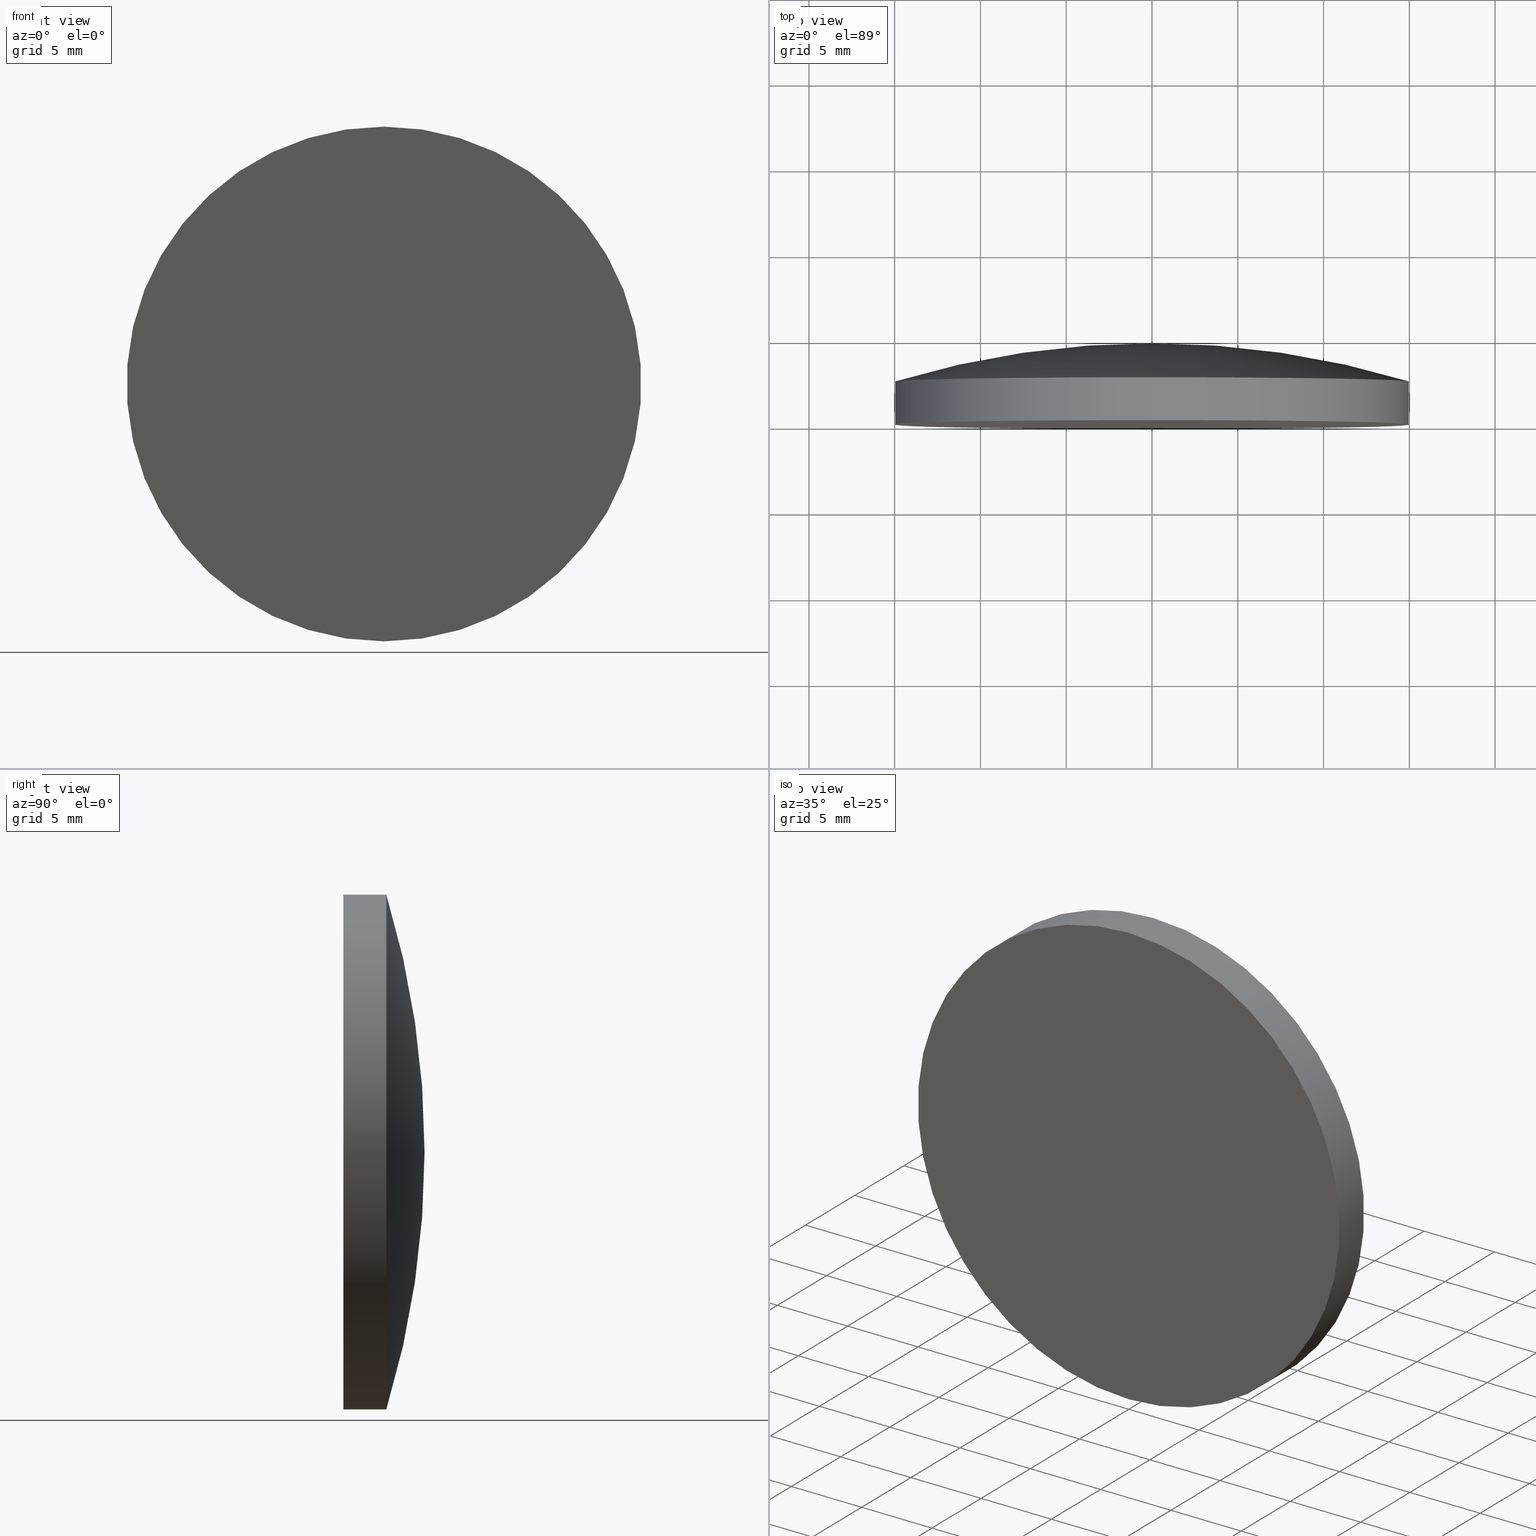
[diagram: canonical four-view strip — front | top / right | iso, engineering-drawing reading convention]
A machine part, canonical four-view strip (front | top / right | iso — engineering-drawing reading convention). The complete STEP part file that produces these views, byte-faithful:
ISO-10303-21;
HEADER;
FILE_DESCRIPTION (( 'STEP AP203' ),
    '1' );
FILE_NAME ('100552.STEP',
    '2024-05-09T01:18:10',
    ( '' ),
    ( '' ),
    'SwSTEP 2.0',
    'SolidWorks 2020',
    '' );
FILE_SCHEMA (( 'CONFIG_CONTROL_DESIGN' ));
ENDSEC;

DATA;
#1 = COORDINATED_UNIVERSAL_TIME_OFFSET ( 8, 0, .AHEAD. ) ;
#2 = DATE_AND_TIME ( #144, #142 ) ;
#3 = AXIS2_PLACEMENT_3D ( 'NONE', #179, #162, #22 ) ;
#4 = APPLICATION_CONTEXT ( 'configuration controlled 3d designs of mechanical parts and assemblies' ) ;
#5 = PRODUCT_DEFINITION ( 'δ֪', '', #41, #196 ) ;
#6 = ADVANCED_FACE ( 'NONE', ( #199 ), #66, .T. ) ;
#7 = APPROVAL_DATE_TIME ( #117, #24 ) ;
#8 = DIRECTION ( 'NONE',  ( -0.000000000000000000, 1.000000000000000000, -0.000000000000000000 ) ) ;
#9 = TOROIDAL_SURFACE ( 'NONE', #99, -0.01138314681478104495, 51.64000000000000057 ) ;
#10 = DIRECTION ( 'NONE',  ( 0.000000000000000000, 0.000000000000000000, 1.000000000000000000 ) ) ;
#11 = CC_DESIGN_PERSON_AND_ORGANIZATION_ASSIGNMENT ( #197, #57, ( #84 ) ) ;
#12 = DIRECTION ( 'NONE',  ( 0.000000000000000000, 0.000000000000000000, 1.000000000000000000 ) ) ;
#13 = APPROVAL_ROLE ( '' ) ;
#14 = CYLINDRICAL_SURFACE ( 'NONE', #174, 15.00000000000000000 ) ;
#15 = EDGE_LOOP ( 'NONE', ( #90, #125, #16, #200 ) ) ;
#16 = ORIENTED_EDGE ( 'NONE', *, *, #26, .F. ) ;
#17 = PERSON_AND_ORGANIZATION_ROLE ( 'creator' ) ;
#18 = AXIS2_PLACEMENT_3D ( 'NONE', #25, #87, #12 ) ;
#19 = PERSON_AND_ORGANIZATION ( #183, #61 ) ;
#20 =( GEOMETRIC_REPRESENTATION_CONTEXT ( 3 ) GLOBAL_UNCERTAINTY_ASSIGNED_CONTEXT ( ( #96 ) ) GLOBAL_UNIT_ASSIGNED_CONTEXT ( ( #169, #44, #138 ) ) REPRESENTATION_CONTEXT ( 'NONE', 'WORKASPACE' ) );
#21 = CYLINDRICAL_SURFACE ( 'NONE', #48, 15.00000000000000000 ) ;
#22 = DIRECTION ( 'NONE',  ( 0.000000000000000000, -0.000000000000000000, -1.000000000000000000 ) ) ;
#23 = AXIS2_PLACEMENT_3D ( 'NONE', #58, #122, #109 ) ;
#24 = APPROVAL ( #83, 'δָ��' ) ;
#25 = CARTESIAN_POINT ( 'NONE',  ( 0.000000000000000000, -1.734723475976807094E-15, 0.000000000000000000 ) ) ;
#26 = EDGE_CURVE ( 'NONE', #47, #112, #151, .T. ) ;
#27 = DIRECTION ( 'NONE',  ( -0.000000000000000000, 1.000000000000000000, -0.000000000000000000 ) ) ;
#28 = AXIS2_PLACEMENT_3D ( 'NONE', #193, #54, #10 ) ;
#29 = ORIENTED_EDGE ( 'NONE', *, *, #171, .T. ) ;
#30 = MECHANICAL_CONTEXT ( 'NONE', #4, 'mechanical' ) ;
#31 = DIRECTION ( 'NONE',  ( 1.224646799147353207E-16, 0.000000000000000000, -1.000000000000000000 ) ) ;
#32 = ORIENTED_EDGE ( 'NONE', *, *, #191, .T. ) ;
#33 = CARTESIAN_POINT ( 'NONE',  ( 0.000000000000000000, -46.90999874539085113, 0.000000000000000000 ) ) ;
#34 = DATE_TIME_ROLE ( 'creation_date' ) ;
#35 = COORDINATED_UNIVERSAL_TIME_OFFSET ( 8, 0, .AHEAD. ) ;
#36 = AXIS2_PLACEMENT_3D ( 'NONE', #45, #89, #43 ) ;
#37 = CLOSED_SHELL ( 'NONE', ( #116, #102, #6, #65, #78 ) ) ;
#38 = FACE_OUTER_BOUND ( 'NONE', #182, .T. ) ;
#39 = CARTESIAN_POINT ( 'NONE',  ( 1.836970198721029589E-15, -1.734723475976807094E-15, -15.00000000000000000 ) ) ;
#40 = CC_DESIGN_PERSON_AND_ORGANIZATION_ASSIGNMENT ( #67, #50, ( #41 ) ) ;
#41 = PRODUCT_DEFINITION_FORMATION_WITH_SPECIFIED_SOURCE ( '�κ�', '', #84, .NOT_KNOWN. ) ;
#42 = EDGE_CURVE ( 'NONE', #60, #74, #147, .T. ) ;
#43 = DIRECTION ( 'NONE',  ( 0.000000000000000000, 0.000000000000000000, 1.000000000000000000 ) ) ;
#44 =( NAMED_UNIT ( * ) PLANE_ANGLE_UNIT ( ) SI_UNIT ( $, .RADIAN. ) );
#45 = CARTESIAN_POINT ( 'NONE',  ( 0.000000000000000000, 2.499999999999998224, 0.000000000000000000 ) ) ;
#46 = ORIENTED_EDGE ( 'NONE', *, *, #171, .F. ) ;
#47 = VERTEX_POINT ( 'NONE', #135 ) ;
#48 = AXIS2_PLACEMENT_3D ( 'NONE', #56, #106, #85 ) ;
#49 = DATE_AND_TIME ( #157, #126 ) ;
#50 = PERSON_AND_ORGANIZATION_ROLE ( 'design_supplier' ) ;
#51 = APPROVAL_PERSON_ORGANIZATION ( #80, #190, #128 ) ;
#52 = AXIS2_PLACEMENT_3D ( 'NONE', #111, #167, #31 ) ;
#53 = FACE_OUTER_BOUND ( 'NONE', #154, .T. ) ;
#54 = DIRECTION ( 'NONE',  ( -0.000000000000000000, 1.000000000000000000, -0.000000000000000000 ) ) ;
#55 = CC_DESIGN_PERSON_AND_ORGANIZATION_ASSIGNMENT ( #172, #114, ( #5 ) ) ;
#56 = CARTESIAN_POINT ( 'NONE',  ( 0.000000000000000000, 4.730000000000000426, 0.000000000000000000 ) ) ;
#57 = PERSON_AND_ORGANIZATION_ROLE ( 'design_owner' ) ;
#58 = CARTESIAN_POINT ( 'NONE',  ( 0.000000000000000000, -46.90999874539085113, -0.01138314681478104495 ) ) ;
#59 = ORIENTED_EDGE ( 'NONE', *, *, #159, .F. ) ;
#60 = VERTEX_POINT ( 'NONE', #105 ) ;
#61 = ORGANIZATION ( 'δָ��', 'δָ��', '' ) ;
#62 = ORIENTED_EDGE ( 'NONE', *, *, #136, .T. ) ;
#63 = CC_DESIGN_DATE_AND_TIME_ASSIGNMENT ( #49, #34, ( #5 ) ) ;
#64 = COORDINATED_UNIVERSAL_TIME_OFFSET ( 8, 0, .AHEAD. ) ;
#65 = ADVANCED_FACE ( 'NONE', ( #134 ), #194, .T. ) ;
#66 = TOROIDAL_SURFACE ( 'NONE', #129, -0.01138314681478104495, 51.64000000000000057 ) ;
#67 = PERSON_AND_ORGANIZATION ( #183, #61 ) ;
#68 = ADVANCED_BREP_SHAPE_REPRESENTATION ( '100552', ( #161, #133 ), #20 ) ;
#69 = SECURITY_CLASSIFICATION ( '', '', #187 ) ;
#70 = DIRECTION ( 'NONE',  ( -0.000000000000000000, 1.000000000000000000, -0.000000000000000000 ) ) ;
#71 = DIRECTION ( 'NONE',  ( 0.000000000000000000, 0.000000000000000000, 1.000000000000000000 ) ) ;
#72 = CARTESIAN_POINT ( 'NONE',  ( 0.000000000000000000, 4.730000000000000426, 0.000000000000000000 ) ) ;
#73 = CARTESIAN_POINT ( 'NONE',  ( 0.000000000000000000, 4.730000000000000426, 15.00000000000000000 ) ) ;
#74 = VERTEX_POINT ( 'NONE', #39 ) ;
#75 = ORIENTED_EDGE ( 'NONE', *, *, #136, .F. ) ;
#76 = ORIENTED_EDGE ( 'NONE', *, *, #26, .T. ) ;
#77 = CC_DESIGN_PERSON_AND_ORGANIZATION_ASSIGNMENT ( #19, #115, ( #69 ) ) ;
#78 = ADVANCED_FACE ( 'NONE', ( #53 ), #21, .T. ) ;
#79 = VECTOR ( 'NONE', #139, 1000.000000000000000 ) ;
#80 = PERSON_AND_ORGANIZATION ( #183, #61 ) ;
#81 = DATE_AND_TIME ( #188, #201 ) ;
#82 = PRODUCT_DEFINITION_SHAPE ( 'NONE', 'NONE',  #5 ) ;
#83 = APPROVAL_STATUS ( 'not_yet_approved' ) ;
#84 = PRODUCT ( '100552', '100552', '', ( #30 ) ) ;
#85 = DIRECTION ( 'NONE',  ( 0.000000000000000000, 0.000000000000000000, 1.000000000000000000 ) ) ;
#86 = APPROVAL_PERSON_ORGANIZATION ( #165, #145, #13 ) ;
#87 = DIRECTION ( 'NONE',  ( -0.000000000000000000, 1.000000000000000000, -0.000000000000000000 ) ) ;
#88 = DIRECTION ( 'NONE',  ( 0.000000000000000000, 0.000000000000000000, 1.000000000000000000 ) ) ;
#89 = DIRECTION ( 'NONE',  ( -0.000000000000000000, 1.000000000000000000, -0.000000000000000000 ) ) ;
#90 = ORIENTED_EDGE ( 'NONE', *, *, #42, .T. ) ;
#91 = DIRECTION ( 'NONE',  ( 1.000000000000000000, 0.000000000000000000, 0.000000000000000000 ) ) ;
#92 = ORIENTED_EDGE ( 'NONE', *, *, #191, .F. ) ;
#93 = DATE_AND_TIME ( #97, #131 ) ;
#94 = CC_DESIGN_APPROVAL ( #190, ( #41 ) ) ;
#95 = APPROVAL_DATE_TIME ( #81, #145 ) ;
#96 = UNCERTAINTY_MEASURE_WITH_UNIT (LENGTH_MEASURE( 1.000000000000000082E-05 ), #169, 'distance_accuracy_value', 'NONE');
#97 = CALENDAR_DATE ( 2024, 9, 5 ) ;
#98 = APPLICATION_CONTEXT ( 'configuration controlled 3d designs of mechanical parts and assemblies' ) ;
#99 = AXIS2_PLACEMENT_3D ( 'NONE', #153, #150, #166 ) ;
#100 = EDGE_CURVE ( 'NONE', #74, #112, #119, .T. ) ;
#101 = APPROVAL_ROLE ( '' ) ;
#102 = ADVANCED_FACE ( 'NONE', ( #38 ), #9, .T. ) ;
#103 = COORDINATED_UNIVERSAL_TIME_OFFSET ( 8, 0, .AHEAD. ) ;
#104 = DATE_TIME_ROLE ( 'classification_date' ) ;
#105 = CARTESIAN_POINT ( 'NONE',  ( 0.000000000000000000, -1.734723475976807094E-15, 15.00000000000000000 ) ) ;
#106 = DIRECTION ( 'NONE',  ( -0.000000000000000000, 1.000000000000000000, -0.000000000000000000 ) ) ;
#107 = CIRCLE ( 'NONE', #18, 15.00000000000000000 ) ;
#108 = APPLICATION_PROTOCOL_DEFINITION ( 'international standard', 'config_control_design', 1994, #4 ) ;
#109 = DIRECTION ( 'NONE',  ( 0.000000000000000000, 0.000000000000000000, 1.000000000000000000 ) ) ;
#110 = CARTESIAN_POINT ( 'NONE',  ( 0.000000000000000000, 0.000000000000000000, 0.000000000000000000 ) ) ;
#111 = CARTESIAN_POINT ( 'NONE',  ( -1.394033431094599677E-18, -46.90999874539085113, 0.01138314681478104495 ) ) ;
#112 = VERTEX_POINT ( 'NONE', #123 ) ;
#113 = EDGE_LOOP ( 'NONE', ( #155, #92 ) ) ;
#114 = PERSON_AND_ORGANIZATION_ROLE ( 'creator' ) ;
#115 = PERSON_AND_ORGANIZATION_ROLE ( 'classification_officer' ) ;
#116 = ADVANCED_FACE ( 'NONE', ( #195 ), #14, .T. ) ;
#117 = DATE_AND_TIME ( #192, #180 ) ;
#118 = DIRECTION ( 'NONE',  ( 0.000000000000000000, 0.000000000000000000, 1.000000000000000000 ) ) ;
#119 = LINE ( 'NONE', #178, #186 ) ;
#120 = EDGE_CURVE ( 'NONE', #60, #47, #137, .T. ) ;
#121 = APPLICATION_PROTOCOL_DEFINITION ( 'international standard', 'config_control_design', 1994, #98 ) ;
#122 = DIRECTION ( 'NONE',  ( -1.000000000000000000, 0.000000000000000000, 0.000000000000000000 ) ) ;
#123 = CARTESIAN_POINT ( 'NONE',  ( 1.836970198721029589E-15, 2.500000000000000444, -15.00000000000000178 ) ) ;
#124 = ORIENTED_EDGE ( 'NONE', *, *, #100, .F. ) ;
#125 = ORIENTED_EDGE ( 'NONE', *, *, #100, .T. ) ;
#126 = LOCAL_TIME ( 9, 18, 10.00000000000000000, #1 ) ;
#127 = CIRCLE ( 'NONE', #36, 15.00000000000000000 ) ;
#128 = APPROVAL_ROLE ( '' ) ;
#129 = AXIS2_PLACEMENT_3D ( 'NONE', #33, #70, #118 ) ;
#130 = APPROVAL_STATUS ( 'not_yet_approved' ) ;
#131 = LOCAL_TIME ( 9, 18, 10.00000000000000000, #35 ) ;
#132 = CIRCLE ( 'NONE', #52, 51.64000000000000057 ) ;
#133 = AXIS2_PLACEMENT_3D ( 'NONE', #110, #88, #91 ) ;
#134 = FACE_OUTER_BOUND ( 'NONE', #113, .T. ) ;
#135 = CARTESIAN_POINT ( 'NONE',  ( 0.000000000000000000, 2.500000000000000444, 15.00000000000000178 ) ) ;
#136 = EDGE_CURVE ( 'NONE', #47, #140, #189, .T. ) ;
#137 = LINE ( 'NONE', #73, #79 ) ;
#138 =( NAMED_UNIT ( * ) SI_UNIT ( $, .STERADIAN. ) SOLID_ANGLE_UNIT ( ) );
#139 = DIRECTION ( 'NONE',  ( -0.000000000000000000, 1.000000000000000000, -0.000000000000000000 ) ) ;
#140 = VERTEX_POINT ( 'NONE', #181 ) ;
#141 = EDGE_LOOP ( 'NONE', ( #46, #185, #62 ) ) ;
#142 = LOCAL_TIME ( 9, 18, 10.00000000000000000, #146 ) ;
#143 = CC_DESIGN_APPROVAL ( #145, ( #5 ) ) ;
#144 = CALENDAR_DATE ( 2024, 9, 5 ) ;
#145 = APPROVAL ( #152, 'δָ��' ) ;
#146 = COORDINATED_UNIVERSAL_TIME_OFFSET ( 8, 0, .AHEAD. ) ;
#147 = CIRCLE ( 'NONE', #177, 15.00000000000000000 ) ;
#148 = PERSON_AND_ORGANIZATION ( #183, #61 ) ;
#149 = DIRECTION ( 'NONE',  ( -0.000000000000000000, 1.000000000000000000, -0.000000000000000000 ) ) ;
#150 = DIRECTION ( 'NONE',  ( -0.000000000000000000, 1.000000000000000000, -0.000000000000000000 ) ) ;
#151 = CIRCLE ( 'NONE', #28, 15.00000000000000000 ) ;
#152 = APPROVAL_STATUS ( 'not_yet_approved' ) ;
#153 = CARTESIAN_POINT ( 'NONE',  ( 0.000000000000000000, -46.90999874539085113, 0.000000000000000000 ) ) ;
#154 = EDGE_LOOP ( 'NONE', ( #124, #32, #168, #59 ) ) ;
#155 = ORIENTED_EDGE ( 'NONE', *, *, #42, .F. ) ;
#156 = APPROVAL_PERSON_ORGANIZATION ( #148, #24, #101 ) ;
#157 = CALENDAR_DATE ( 2024, 9, 5 ) ;
#158 = PRODUCT_RELATED_PRODUCT_CATEGORY ( 'detail', '', ( #84 ) ) ;
#159 = EDGE_CURVE ( 'NONE', #112, #47, #127, .T. ) ;
#160 = APPROVAL_DATE_TIME ( #2, #190 ) ;
#161 = MANIFOLD_SOLID_BREP ( '��ת1', #37 ) ;
#162 = DIRECTION ( 'NONE',  ( 0.000000000000000000, -1.000000000000000000, 0.000000000000000000 ) ) ;
#163 = CARTESIAN_POINT ( 'NONE',  ( 0.000000000000000000, -1.734723475976807094E-15, 0.000000000000000000 ) ) ;
#164 = CC_DESIGN_SECURITY_CLASSIFICATION ( #69, ( #41 ) ) ;
#165 = PERSON_AND_ORGANIZATION ( #183, #61 ) ;
#166 = DIRECTION ( 'NONE',  ( 0.000000000000000000, 0.000000000000000000, 1.000000000000000000 ) ) ;
#167 = DIRECTION ( 'NONE',  ( 1.000000000000000000, 0.000000000000000000, 1.224646799147353207E-16 ) ) ;
#168 = ORIENTED_EDGE ( 'NONE', *, *, #120, .T. ) ;
#169 =( LENGTH_UNIT ( ) NAMED_UNIT ( * ) SI_UNIT ( .MILLI., .METRE. ) );
#170 = CC_DESIGN_PERSON_AND_ORGANIZATION_ASSIGNMENT ( #173, #17, ( #41 ) ) ;
#171 = EDGE_CURVE ( 'NONE', #112, #140, #132, .T. ) ;
#172 = PERSON_AND_ORGANIZATION ( #183, #61 ) ;
#173 = PERSON_AND_ORGANIZATION ( #183, #61 ) ;
#174 = AXIS2_PLACEMENT_3D ( 'NONE', #72, #27, #198 ) ;
#175 = CC_DESIGN_DATE_AND_TIME_ASSIGNMENT ( #93, #104, ( #69 ) ) ;
#176 = SHAPE_DEFINITION_REPRESENTATION ( #82, #68 ) ;
#177 = AXIS2_PLACEMENT_3D ( 'NONE', #163, #8, #71 ) ;
#178 = CARTESIAN_POINT ( 'NONE',  ( 1.836970198721029589E-15, 4.730000000000000426, -15.00000000000000000 ) ) ;
#179 = CARTESIAN_POINT ( 'NONE',  ( 0.000000000000000000, -9.184850993605147944E-16, 0.000000000000000000 ) ) ;
#180 = LOCAL_TIME ( 9, 18, 10.00000000000000000, #103 ) ;
#181 = CARTESIAN_POINT ( 'NONE',  ( 0.000000000000000000, 4.730000000000000426, 0.000000000000000000 ) ) ;
#182 = EDGE_LOOP ( 'NONE', ( #76, #29, #75 ) ) ;
#183 = PERSON ( 'δָ��', 'δָ��', 'δָ��', ('δָ��'), ('δָ��'), ('δָ��') ) ;
#184 = CC_DESIGN_APPROVAL ( #24, ( #69 ) ) ;
#185 = ORIENTED_EDGE ( 'NONE', *, *, #159, .T. ) ;
#186 = VECTOR ( 'NONE', #149, 1000.000000000000000 ) ;
#187 = SECURITY_CLASSIFICATION_LEVEL ( 'unclassified' ) ;
#188 = CALENDAR_DATE ( 2024, 9, 5 ) ;
#189 = CIRCLE ( 'NONE', #23, 51.64000000000000057 ) ;
#190 = APPROVAL ( #130, 'δָ��' ) ;
#191 = EDGE_CURVE ( 'NONE', #74, #60, #107, .T. ) ;
#192 = CALENDAR_DATE ( 2024, 9, 5 ) ;
#193 = CARTESIAN_POINT ( 'NONE',  ( 0.000000000000000000, 2.499999999999998224, 0.000000000000000000 ) ) ;
#194 = PLANE ( 'NONE',  #3 ) ;
#195 = FACE_OUTER_BOUND ( 'NONE', #15, .T. ) ;
#196 = DESIGN_CONTEXT ( 'detailed design', #98, 'design' ) ;
#197 = PERSON_AND_ORGANIZATION ( #183, #61 ) ;
#198 = DIRECTION ( 'NONE',  ( 0.000000000000000000, 0.000000000000000000, 1.000000000000000000 ) ) ;
#199 = FACE_OUTER_BOUND ( 'NONE', #141, .T. ) ;
#200 = ORIENTED_EDGE ( 'NONE', *, *, #120, .F. ) ;
#201 = LOCAL_TIME ( 9, 18, 10.00000000000000000, #64 ) ;
ENDSEC;
END-ISO-10303-21;
